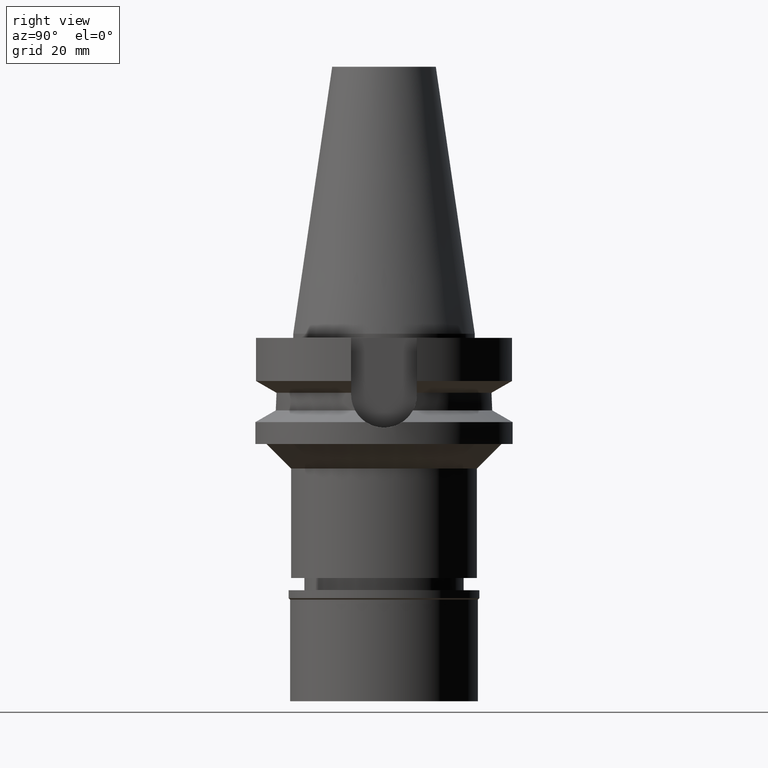
[diagram: clean part render]
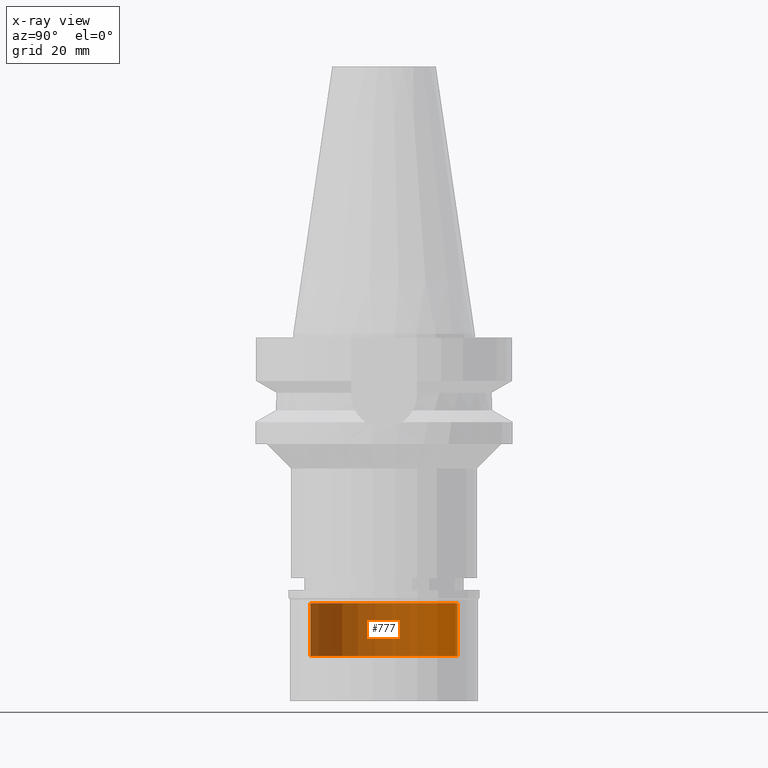
[diagram: x-ray — body ghosted, one internal face saturated and labeled with its STEP entity id]
A machine part, right view, then the same camera in x-ray: the body is ghosted and one INTERNAL B-rep face — a face not visible from any outside direction — is saturated and labeled: STEP entity #777.
In plain terms, the highlighted cylindrical surface (partial cylindrical patch) has radius 18 mm, axis along (0, 0, -1).
Its self-contained STEP definition (entity closure, byte-faithful):
#151 = DIRECTION ( 'NONE',  ( 0.0000000000000000000, 0.0000000000000000000, -1.000000000000000000 ) ) ;
#174 = VECTOR ( 'NONE', #2901, 1000.000000000000000 ) ;
#360 = CARTESIAN_POINT ( 'NONE',  ( 0.0000000000000000000, 18.00000000000000000, -79.00000000000000000 ) ) ;
#402 = EDGE_LOOP ( 'NONE', ( #2891, #2190, #513, #1460 ) ) ;
#513 = ORIENTED_EDGE ( 'NONE', *, *, #1401, .T. ) ;
#583 = FACE_OUTER_BOUND ( 'NONE', #402, .T. ) ;
#606 = VECTOR ( 'NONE', #1215, 1000.000000000000000 ) ;
#777 = ADVANCED_FACE ( 'NONE', ( #583 ), #2511, .T. ) ;
#812 = CARTESIAN_POINT ( 'NONE',  ( 0.0000000000000000000, -18.00000000000000000, -66.00000000000000000 ) ) ;
#817 = AXIS2_PLACEMENT_3D ( 'NONE', #893, #1835, #831 ) ;
#831 = DIRECTION ( 'NONE',  ( 0.0000000000000000000, 1.000000000000000000, 0.0000000000000000000 ) ) ;
#893 = CARTESIAN_POINT ( 'NONE',  ( 0.0000000000000000000, 0.0000000000000000000, -79.00000000000000000 ) ) ;
#948 = VERTEX_POINT ( 'NONE', #1130 ) ;
#1104 = DIRECTION ( 'NONE',  ( 0.0000000000000000000, 0.0000000000000000000, -1.000000000000000000 ) ) ;
#1125 = CARTESIAN_POINT ( 'NONE',  ( 0.0000000000000000000, -18.00000000000000000, -66.00000000000000000 ) ) ;
#1130 = CARTESIAN_POINT ( 'NONE',  ( 0.0000000000000000000, -18.00000000000000000, -79.00000000000000000 ) ) ;
#1215 = DIRECTION ( 'NONE',  ( 0.0000000000000000000, 0.0000000000000000000, -1.000000000000000000 ) ) ;
#1266 = EDGE_CURVE ( 'NONE', #2939, #948, #2449, .T. ) ;
#1401 = EDGE_CURVE ( 'NONE', #2939, #1483, #2395, .T. ) ;
#1460 = ORIENTED_EDGE ( 'NONE', *, *, #2311, .T. ) ;
#1483 = VERTEX_POINT ( 'NONE', #2117 ) ;
#1703 = AXIS2_PLACEMENT_3D ( 'NONE', #2763, #151, #2543 ) ;
#1710 = AXIS2_PLACEMENT_3D ( 'NONE', #1789, #1104, #2280 ) ;
#1765 = EDGE_CURVE ( 'NONE', #1974, #948, #2159, .T. ) ;
#1789 = CARTESIAN_POINT ( 'NONE',  ( 0.0000000000000000000, 0.0000000000000000000, -66.00000000000000000 ) ) ;
#1835 = DIRECTION ( 'NONE',  ( 0.0000000000000000000, 0.0000000000000000000, 1.000000000000000000 ) ) ;
#1974 = VERTEX_POINT ( 'NONE', #360 ) ;
#2117 = CARTESIAN_POINT ( 'NONE',  ( 0.0000000000000000000, 18.00000000000000000, -66.00000000000000000 ) ) ;
#2159 = CIRCLE ( 'NONE', #817, 18.00000000000000000 ) ;
#2190 = ORIENTED_EDGE ( 'NONE', *, *, #1266, .F. ) ;
#2280 = DIRECTION ( 'NONE',  ( 0.0000000000000000000, -1.000000000000000000, 0.0000000000000000000 ) ) ;
#2311 = EDGE_CURVE ( 'NONE', #1483, #1974, #2927, .T. ) ;
#2395 = CIRCLE ( 'NONE', #1710, 18.00000000000000000 ) ;
#2449 = LINE ( 'NONE', #812, #606 ) ;
#2475 = CARTESIAN_POINT ( 'NONE',  ( 0.0000000000000000000, 18.00000000000000000, -66.00000000000000000 ) ) ;
#2511 = CYLINDRICAL_SURFACE ( 'NONE', #1703, 18.00000000000000000 ) ;
#2543 = DIRECTION ( 'NONE',  ( 0.0000000000000000000, -1.000000000000000000, 0.0000000000000000000 ) ) ;
#2763 = CARTESIAN_POINT ( 'NONE',  ( 0.0000000000000000000, 0.0000000000000000000, 0.0000000000000000000 ) ) ;
#2891 = ORIENTED_EDGE ( 'NONE', *, *, #1765, .T. ) ;
#2901 = DIRECTION ( 'NONE',  ( 0.0000000000000000000, 0.0000000000000000000, -1.000000000000000000 ) ) ;
#2927 = LINE ( 'NONE', #2475, #174 ) ;
#2939 = VERTEX_POINT ( 'NONE', #1125 ) ;